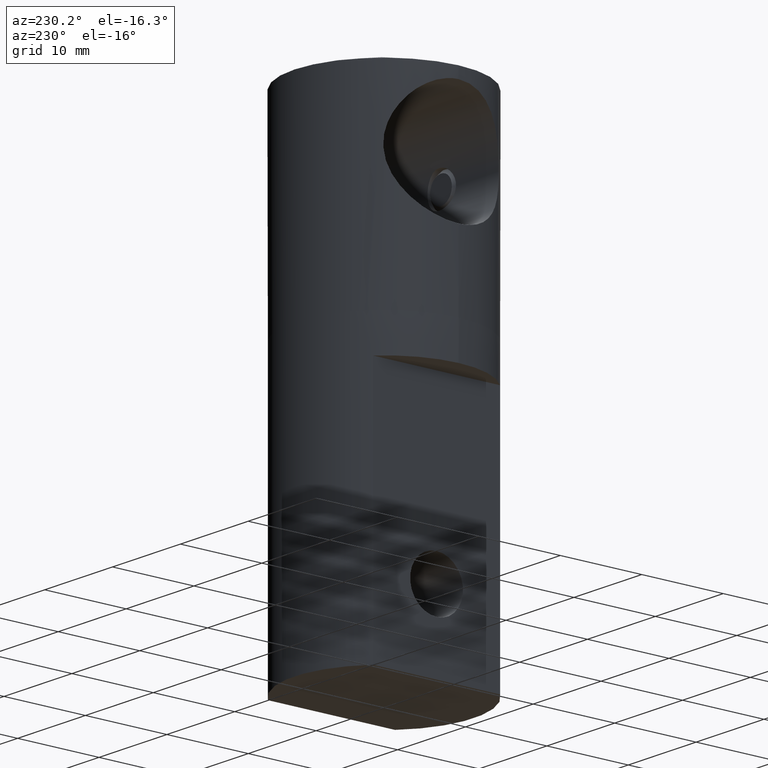
[diagram: clean part render]
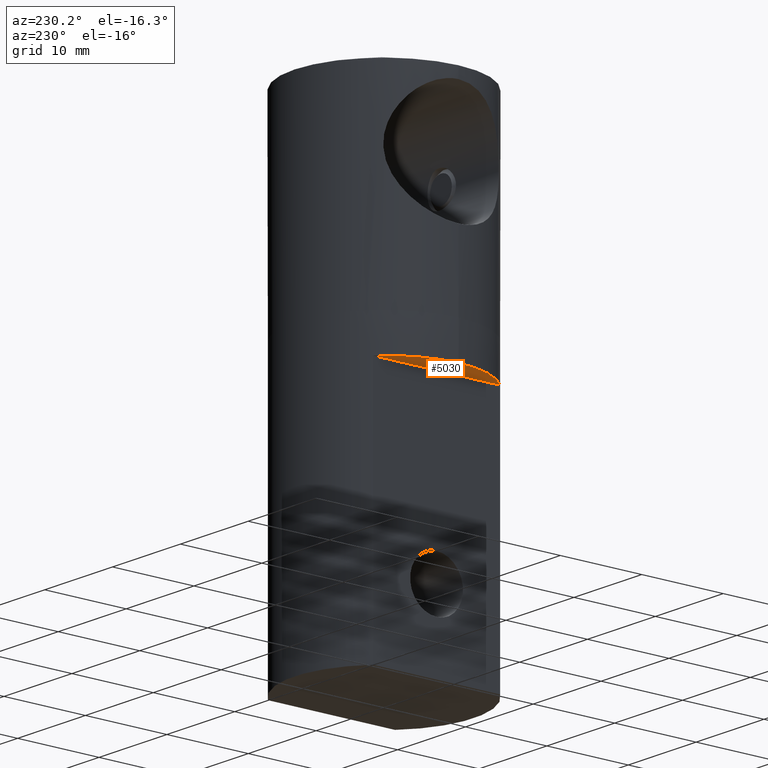
[diagram: same view with one face highlighted and labeled with its STEP entity id]
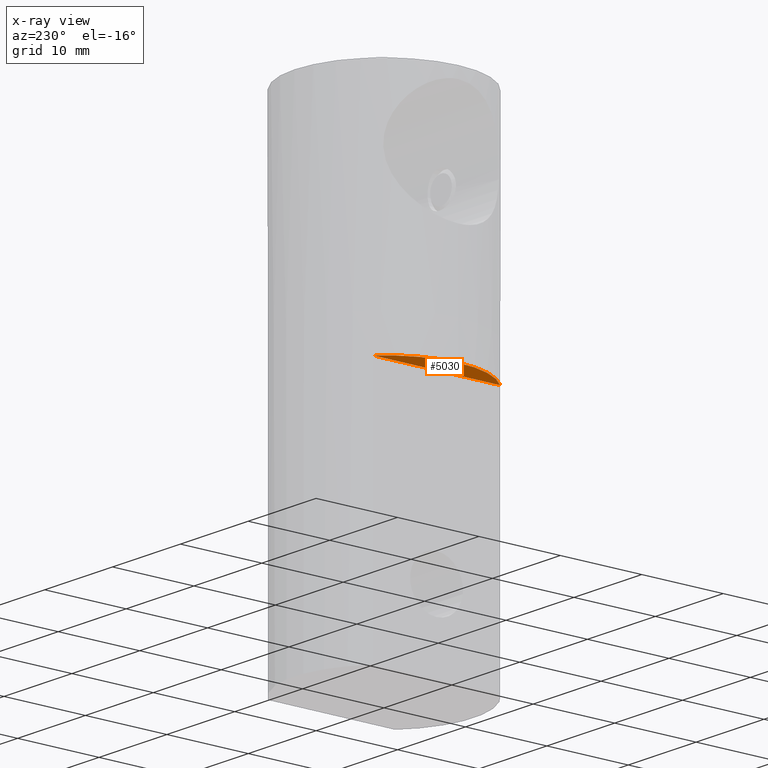
[diagram: x-ray of the same camera — body ghosted, the highlighted face saturated]
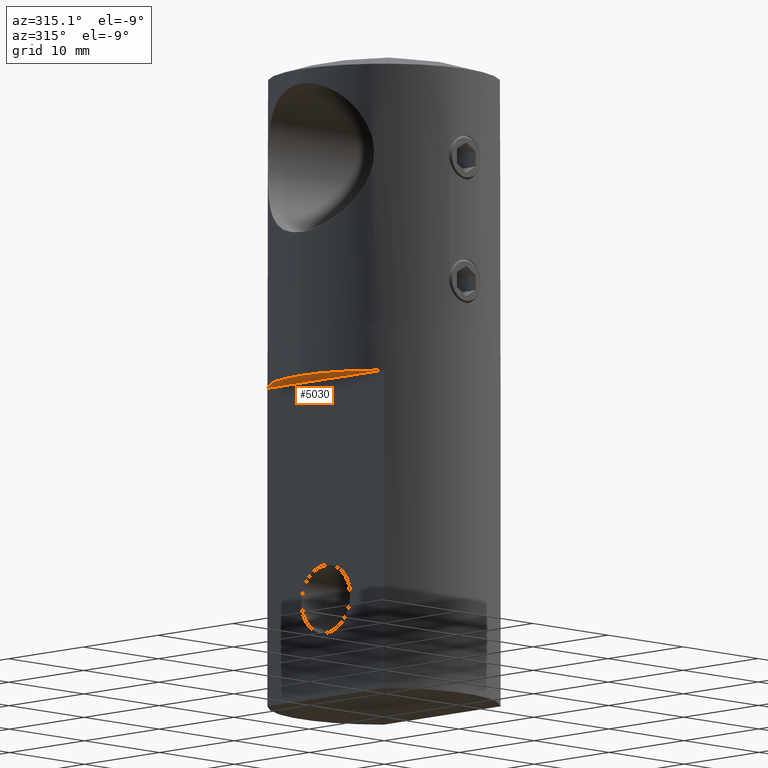
[diagram: same view with one face highlighted and labeled with its STEP entity id]
A machine part, auxiliary view. The second image highlights one B-rep face of the part: STEP entity #5030.
The next image is the same camera in x-ray: the body ghosted, the highlighted face saturated — about 0% of this face is hidden behind the body in this view.
A second angle (auxiliary view) of the same face is appended — the face is thin or edge-on in the first view.
In plain terms, the highlighted planar face has unit normal (0, 0, -1).
Its self-contained STEP definition (entity closure, byte-faithful):
#141 = CARTESIAN_POINT ( 'NONE',  ( -7.750000000000000888, 7.806247497997995666, -4.500000000000000888 ) ) ;
#245 = CARTESIAN_POINT ( 'NONE',  ( -11.00000000000000000, 1.347111479062088405E-15, -4.500000000000000888 ) ) ;
#1465 = DIRECTION ( 'NONE',  ( 0.000000000000000000, 0.000000000000000000, -1.000000000000000000 ) ) ;
#2023 = CARTESIAN_POINT ( 'NONE',  ( -7.750000000000000888, 7.806247497997995666, -4.500000000000000888 ) ) ;
#3342 = AXIS2_PLACEMENT_3D ( 'NONE', #6002, #10064, #9900 ) ;
#3652 = DIRECTION ( 'NONE',  ( 0.000000000000000000, 0.000000000000000000, -1.000000000000000000 ) ) ;
#4040 = CARTESIAN_POINT ( 'NONE',  ( 0.000000000000000000, 0.000000000000000000, -4.500000000000000888 ) ) ;
#4458 = VECTOR ( 'NONE', #16701, 1000.000000000000000 ) ;
#4601 = CARTESIAN_POINT ( 'NONE',  ( -7.750000000000000888, -7.806247497997995666, -4.500000000000000888 ) ) ;
#5030 = ADVANCED_FACE ( 'NONE', ( #16866 ), #11286, .T. ) ;
#5065 = VERTEX_POINT ( 'NONE', #4601 ) ;
#5382 = ORIENTED_EDGE ( 'NONE', *, *, #12916, .T. ) ;
#6002 = CARTESIAN_POINT ( 'NONE',  ( 0.000000000000000000, 0.000000000000000000, -4.500000000000000888 ) ) ;
#7746 = AXIS2_PLACEMENT_3D ( 'NONE', #4040, #1465, #13346 ) ;
#8434 = ORIENTED_EDGE ( 'NONE', *, *, #13729, .T. ) ;
#9900 = DIRECTION ( 'NONE',  ( -1.000000000000000000, 0.000000000000000000, -0.000000000000000000 ) ) ;
#10064 = DIRECTION ( 'NONE',  ( 0.000000000000000000, 0.000000000000000000, -1.000000000000000000 ) ) ;
#10150 = AXIS2_PLACEMENT_3D ( 'NONE', #11659, #3652, #10509 ) ;
#10509 = DIRECTION ( 'NONE',  ( -1.000000000000000000, 0.000000000000000000, 0.000000000000000000 ) ) ;
#11132 = VERTEX_POINT ( 'NONE', #141 ) ;
#11286 = PLANE ( 'NONE',  #3342 ) ;
#11515 = LINE ( 'NONE', #2023, #4458 ) ;
#11621 = VERTEX_POINT ( 'NONE', #245 ) ;
#11659 = CARTESIAN_POINT ( 'NONE',  ( 0.000000000000000000, 0.000000000000000000, -4.500000000000000888 ) ) ;
#11690 = EDGE_CURVE ( 'NONE', #11621, #11132, #13834, .T. ) ;
#12916 = EDGE_CURVE ( 'NONE', #11132, #5065, #11515, .T. ) ;
#13088 = ORIENTED_EDGE ( 'NONE', *, *, #11690, .T. ) ;
#13346 = DIRECTION ( 'NONE',  ( -1.000000000000000000, 0.000000000000000000, 0.000000000000000000 ) ) ;
#13729 = EDGE_CURVE ( 'NONE', #5065, #11621, #16354, .T. ) ;
#13834 = CIRCLE ( 'NONE', #10150, 11.00000000000000000 ) ;
#15758 = EDGE_LOOP ( 'NONE', ( #8434, #13088, #5382 ) ) ;
#16354 = CIRCLE ( 'NONE', #7746, 11.00000000000000000 ) ;
#16701 = DIRECTION ( 'NONE',  ( 0.000000000000000000, -1.000000000000000000, 0.000000000000000000 ) ) ;
#16866 = FACE_OUTER_BOUND ( 'NONE', #15758, .T. ) ;